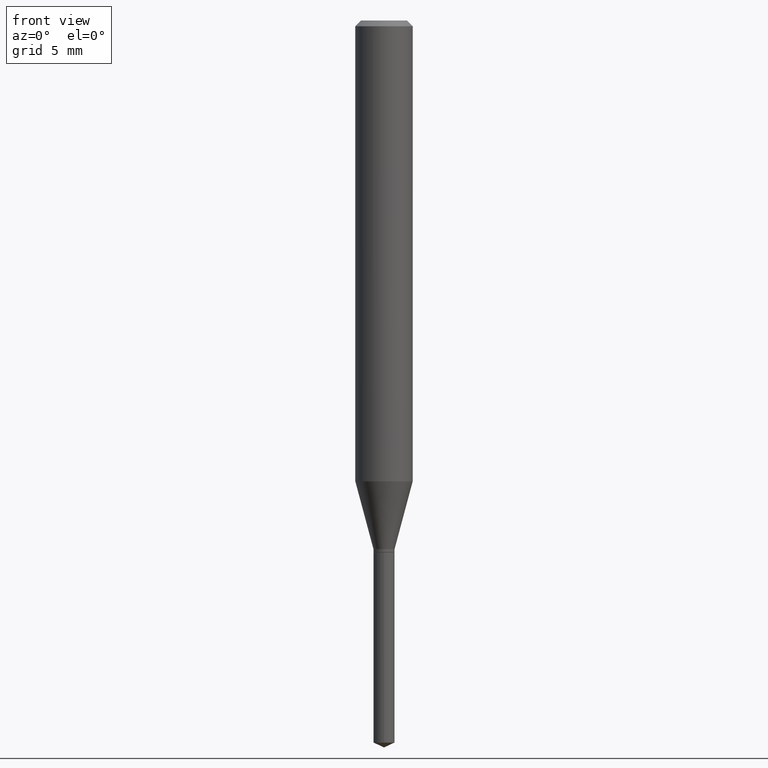
[diagram: clean part render]
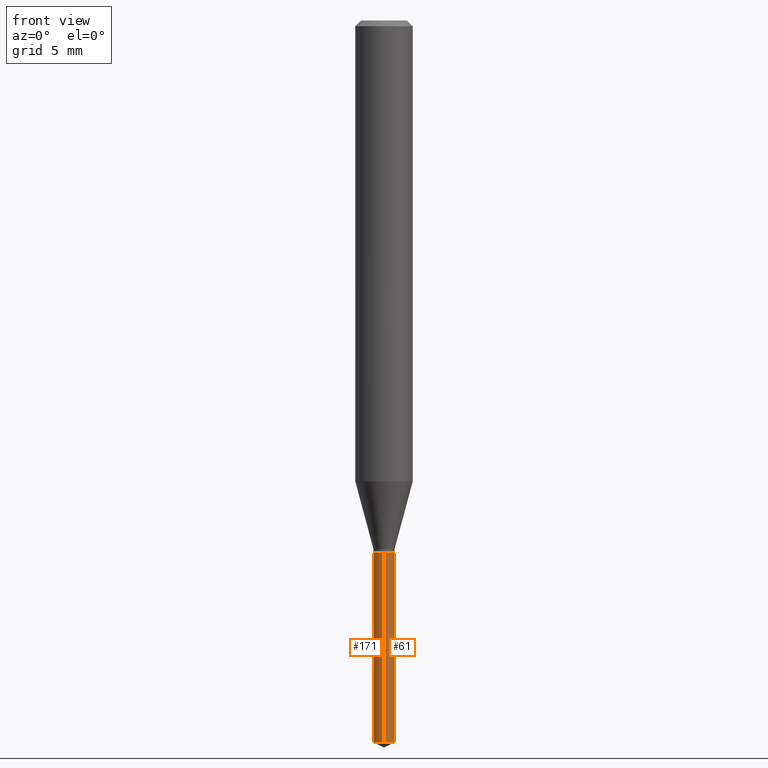
[diagram: same view with one multi-face feature highlighted, each face labeled with its STEP entity id]
A machine part, front view. The highlighted faces form ONE feature: a constant-radius fillet chain: 2 tangent blend faces with common blend radius 0.5499 mm. The faces share edges in the B-rep.
Their STEP definitions:
[1] entity #61 (Cylinder):
#4 = CARTESIAN_POINT ( 'NONE',  ( 3.633951633074026465E-29, -5.188393814565889832E-15, -1.486004439200944605 ) ) ;
#12 = DIRECTION ( 'NONE',  ( -6.982962677686265922E-15, -1.000000000000000000, 6.309117768277745325E-15 ) ) ;
#26 = VERTEX_POINT ( 'NONE', #220 ) ;
#30 = CARTESIAN_POINT ( 'NONE',  ( 1.538325022920883819E-16, 0.02164999999999617578, -1.094500000000000028 ) ) ;
#61 = ADVANCED_FACE ( 'NONE', ( #222 ), #304, .T. ) ;
#69 = AXIS2_PLACEMENT_3D ( 'NONE', #391, #175, #87 ) ;
#85 = DIRECTION ( 'NONE',  ( -2.445402730703145379E-29, 3.491575962694140016E-15, 1.000000000000000000 ) ) ;
#87 = DIRECTION ( 'NONE',  ( -6.982962677686265922E-15, -1.000000000000000000, 6.309117768277745325E-15 ) ) ;
#132 = CARTESIAN_POINT ( 'NONE',  ( 1.538325022920979468E-16, 0.02164999999999480187, -1.486004439200944605 ) ) ;
#159 = EDGE_CURVE ( 'NONE', #473, #328, #346, .T. ) ;
#175 = DIRECTION ( 'NONE',  ( -2.445402730703145379E-29, 3.491575962694140016E-15, 1.000000000000000000 ) ) ;
#191 = CARTESIAN_POINT ( 'NONE',  ( -1.511811419718808852E-16, -0.02165000000000381897, -1.094499999999999806 ) ) ;
#193 = VECTOR ( 'NONE', #85, 39.37007874015748143 ) ;
#202 = CIRCLE ( 'NONE', #404, 0.02164999999999999564 ) ;
#206 = VERTEX_POINT ( 'NONE', #132 ) ;
#215 = DIRECTION ( 'NONE',  ( -2.445402730703145379E-29, 3.491575962694140016E-15, 1.000000000000000000 ) ) ;
#220 = CARTESIAN_POINT ( 'NONE',  ( -1.511811419718712709E-16, -0.02165000000000518246, -1.486004439200944605 ) ) ;
#222 = FACE_OUTER_BOUND ( 'NONE', #406, .T. ) ;
#223 = DIRECTION ( 'NONE',  ( -2.445402730703145379E-29, 3.491575962694140016E-15, 1.000000000000000000 ) ) ;
#237 = AXIS2_PLACEMENT_3D ( 'NONE', #458, #261, #12 ) ;
#240 = ORIENTED_EDGE ( 'NONE', *, *, #256, .T. ) ;
#256 = EDGE_CURVE ( 'NONE', #206, #328, #483, .T. ) ;
#259 = CARTESIAN_POINT ( 'NONE',  ( -1.511811419718808852E-16, -0.02165000000000381897, -1.094499999999999806 ) ) ;
#261 = DIRECTION ( 'NONE',  ( -2.445402730703145379E-29, 3.491575962694140016E-15, 1.000000000000000000 ) ) ;
#304 = CYLINDRICAL_SURFACE ( 'NONE', #237, 0.02164999999999999564 ) ;
#322 = CARTESIAN_POINT ( 'NONE',  ( 1.538325022920980454E-16, 0.02164999999999617578, -1.094500000000000028 ) ) ;
#328 = VERTEX_POINT ( 'NONE', #322 ) ;
#346 = CIRCLE ( 'NONE', #69, 0.02164999999999999564 ) ;
#358 = ORIENTED_EDGE ( 'NONE', *, *, #159, .F. ) ;
#360 = ORIENTED_EDGE ( 'NONE', *, *, #421, .F. ) ;
#375 = DIRECTION ( 'NONE',  ( -6.982962677686265922E-15, -1.000000000000000000, 0.000000000000000000 ) ) ;
#385 = VECTOR ( 'NONE', #215, 39.37007874015748143 ) ;
#391 = CARTESIAN_POINT ( 'NONE',  ( 2.676565608369631794E-29, -3.821426325363822773E-15, -1.094499999999999806 ) ) ;
#404 = AXIS2_PLACEMENT_3D ( 'NONE', #4, #223, #375 ) ;
#406 = EDGE_LOOP ( 'NONE', ( #409, #240, #358, #360 ) ) ;
#409 = ORIENTED_EDGE ( 'NONE', *, *, #450, .T. ) ;
#418 = LINE ( 'NONE', #259, #193 ) ;
#421 = EDGE_CURVE ( 'NONE', #26, #473, #418, .T. ) ;
#450 = EDGE_CURVE ( 'NONE', #26, #206, #202, .T. ) ;
#458 = CARTESIAN_POINT ( 'NONE',  ( 2.676565608369631794E-29, -3.821426325363822773E-15, -1.094499999999999806 ) ) ;
#473 = VERTEX_POINT ( 'NONE', #191 ) ;
#483 = LINE ( 'NONE', #30, #385 ) ;
[2] entity #171 (Cylinder):
#26 = VERTEX_POINT ( 'NONE', #220 ) ;
#30 = CARTESIAN_POINT ( 'NONE',  ( 1.538325022920883819E-16, 0.02164999999999617578, -1.094500000000000028 ) ) ;
#41 = CARTESIAN_POINT ( 'NONE',  ( 2.676565608369631794E-29, -3.821426325363822773E-15, -1.094499999999999806 ) ) ;
#48 = EDGE_CURVE ( 'NONE', #328, #473, #186, .T. ) ;
#53 = DIRECTION ( 'NONE',  ( -6.982962677686265922E-15, -1.000000000000000000, 6.309117768277745325E-15 ) ) ;
#55 = CARTESIAN_POINT ( 'NONE',  ( 2.676565608369631794E-29, -3.821426325363822773E-15, -1.094499999999999806 ) ) ;
#85 = DIRECTION ( 'NONE',  ( -2.445402730703145379E-29, 3.491575962694140016E-15, 1.000000000000000000 ) ) ;
#99 = AXIS2_PLACEMENT_3D ( 'NONE', #41, #192, #155 ) ;
#110 = AXIS2_PLACEMENT_3D ( 'NONE', #286, #368, #438 ) ;
#120 = AXIS2_PLACEMENT_3D ( 'NONE', #55, #350, #53 ) ;
#126 = ORIENTED_EDGE ( 'NONE', *, *, #48, .F. ) ;
#132 = CARTESIAN_POINT ( 'NONE',  ( 1.538325022920979468E-16, 0.02164999999999480187, -1.486004439200944605 ) ) ;
#155 = DIRECTION ( 'NONE',  ( -6.982962677686265922E-15, -1.000000000000000000, 6.309117768277745325E-15 ) ) ;
#171 = ADVANCED_FACE ( 'NONE', ( #384 ), #468, .T. ) ;
#186 = CIRCLE ( 'NONE', #99, 0.02164999999999999564 ) ;
#191 = CARTESIAN_POINT ( 'NONE',  ( -1.511811419718808852E-16, -0.02165000000000381897, -1.094499999999999806 ) ) ;
#192 = DIRECTION ( 'NONE',  ( -2.445402730703145379E-29, 3.491575962694140016E-15, 1.000000000000000000 ) ) ;
#193 = VECTOR ( 'NONE', #85, 39.37007874015748143 ) ;
#206 = VERTEX_POINT ( 'NONE', #132 ) ;
#215 = DIRECTION ( 'NONE',  ( -2.445402730703145379E-29, 3.491575962694140016E-15, 1.000000000000000000 ) ) ;
#220 = CARTESIAN_POINT ( 'NONE',  ( -1.511811419718712709E-16, -0.02165000000000518246, -1.486004439200944605 ) ) ;
#232 = EDGE_LOOP ( 'NONE', ( #411, #379, #367, #126 ) ) ;
#256 = EDGE_CURVE ( 'NONE', #206, #328, #483, .T. ) ;
#259 = CARTESIAN_POINT ( 'NONE',  ( -1.511811419718808852E-16, -0.02165000000000381897, -1.094499999999999806 ) ) ;
#286 = CARTESIAN_POINT ( 'NONE',  ( 3.633951633074026465E-29, -5.188393814565889832E-15, -1.486004439200944605 ) ) ;
#303 = EDGE_CURVE ( 'NONE', #206, #26, #426, .T. ) ;
#322 = CARTESIAN_POINT ( 'NONE',  ( 1.538325022920980454E-16, 0.02164999999999617578, -1.094500000000000028 ) ) ;
#328 = VERTEX_POINT ( 'NONE', #322 ) ;
#350 = DIRECTION ( 'NONE',  ( -2.445402730703145379E-29, 3.491575962694140016E-15, 1.000000000000000000 ) ) ;
#367 = ORIENTED_EDGE ( 'NONE', *, *, #421, .T. ) ;
#368 = DIRECTION ( 'NONE',  ( -2.445402730703145379E-29, 3.491575962694140016E-15, 1.000000000000000000 ) ) ;
#379 = ORIENTED_EDGE ( 'NONE', *, *, #303, .T. ) ;
#384 = FACE_OUTER_BOUND ( 'NONE', #232, .T. ) ;
#385 = VECTOR ( 'NONE', #215, 39.37007874015748143 ) ;
#411 = ORIENTED_EDGE ( 'NONE', *, *, #256, .F. ) ;
#418 = LINE ( 'NONE', #259, #193 ) ;
#421 = EDGE_CURVE ( 'NONE', #26, #473, #418, .T. ) ;
#426 = CIRCLE ( 'NONE', #110, 0.02164999999999999564 ) ;
#438 = DIRECTION ( 'NONE',  ( -6.982962677686265922E-15, -1.000000000000000000, 0.000000000000000000 ) ) ;
#468 = CYLINDRICAL_SURFACE ( 'NONE', #120, 0.02164999999999999564 ) ;
#473 = VERTEX_POINT ( 'NONE', #191 ) ;
#483 = LINE ( 'NONE', #30, #385 ) ;